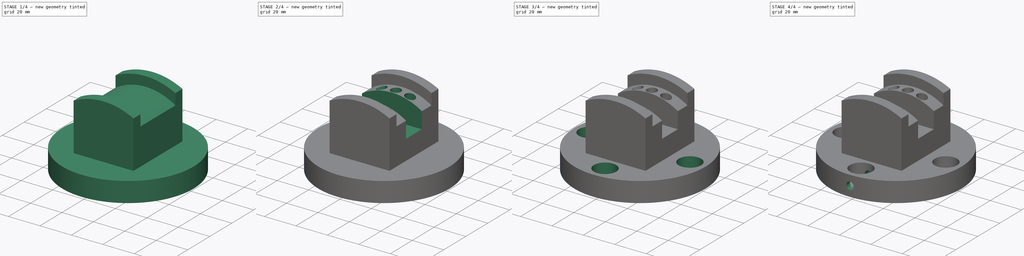
[diagram: build sequence overview — one tinted view per stage of 4, left to right]
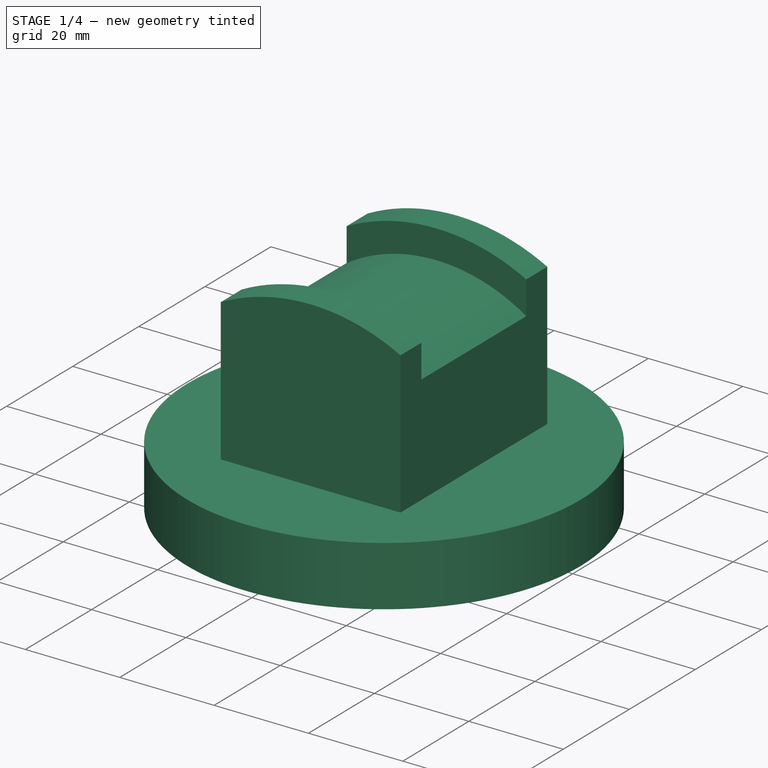
[diagram: stage 1 of 4 — iso view after this stage's code; geometry added in this stage tinted green]
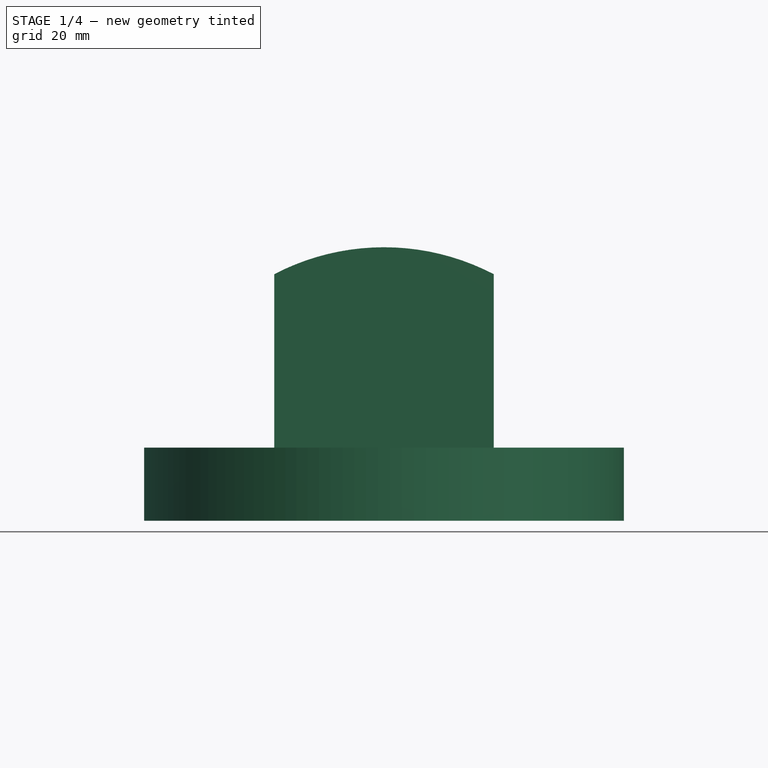
[diagram: stage 1 of 4 — front view after this stage's code; geometry added in this stage tinted green]
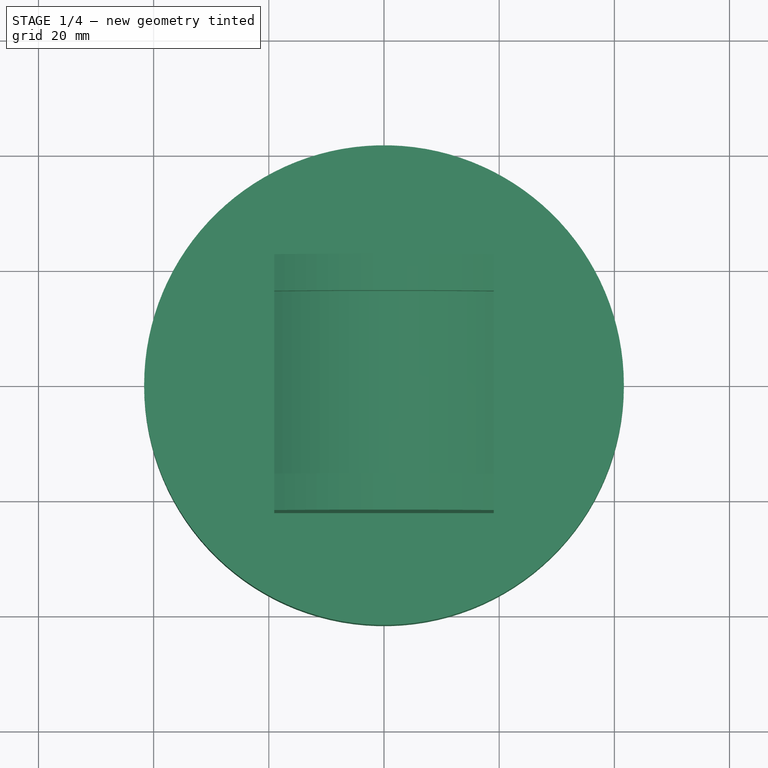
[diagram: stage 1 of 4 — top view after this stage's code; geometry added in this stage tinted green]
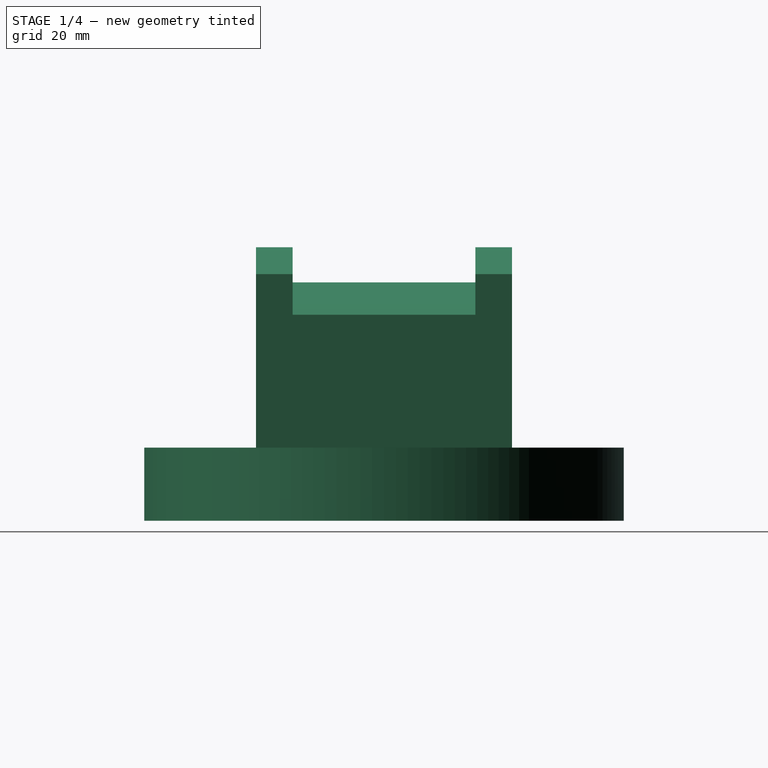
[diagram: stage 1 of 4 — right view after this stage's code; geometry added in this stage tinted green]
FCSTD DOCUMENT  (FreeCAD 0.17R10168 (Git))
Label: Advanced
License: All rights reserved
LicenseURL: http://en.wikipedia.org/wiki/All_rights_reserved
objects: Sketcher::SketchObject×9, PartDesign::Pocket×4, PartDesign::Groove×3, PartDesign::Pad×2, PartDesign::Plane×2, PartDesign::PolarPattern×2, PartDesign::Mirrored×1, PartDesign::MultiTransform×1, PartDesign::Body×1
note: 34 computed .brp shape members not serialized (recipe doc carries the construction recipe); baked Part::Feature solids carry a one-line shape summary decoded from their .brp

FEATURE [Sketcher::SketchObject] Sketch
  MapMode = 5
  Support = -> [XY_Plane]
  sketch-geometry (1):
    g0: Circle CenterX=0 CenterY=0 CenterZ=0 NormalX=0 NormalY=0 NormalZ=1 Radius=41.656
  constraints (2):
    c: Coincident(g0,g-1)
    c: Radius(g0) = 41.656
FEATURE [PartDesign::Pad] Pad
  Length = 12.7
  Length2 = 99.9998
  Midplane = true
  Profile = -> Sketch
  Reversed = true
  Type = 0
FEATURE [PartDesign::Plane] DatumPlane
  MapMode = 5
  Placement = pos=(0,0,6.35) rot=(0,0,1;0rad)
  Support = -> [XY_Plane]
  superPlacement = pos=(0,0,6.35) rot=(0,0,1;0rad)
FEATURE [Sketcher::SketchObject] Sketch001
  MapMode = 5
  Placement = pos=(0,0,6.35) rot=(0,0,1;0rad)
  Support = -> [DatumPlane]
  sketch-geometry (4):
    g0: LineSegment StartX=-19.05 StartY=22.225 StartZ=0 EndX=19.05 EndY=22.225 EndZ=0
    g1: LineSegment StartX=19.05 StartY=22.225 StartZ=0 EndX=19.05 EndY=-22.225 EndZ=0
    g2: LineSegment StartX=19.05 StartY=-22.225 StartZ=0 EndX=-19.05 EndY=-22.225 EndZ=0
    g3: LineSegment StartX=-19.05 StartY=-22.225 StartZ=0 EndX=-19.05 EndY=22.225 EndZ=0
  constraints (12):
    c: Coincident(g0,g1)
    c: Coincident(g1,g2)
    c: Coincident(g2,g3)
    c: Coincident(g3,g0)
    c: Horizontal(g0)
    c: Horizontal(g2)
    c: Vertical(g1)
    c: Vertical(g3)
    c: Symmetric(g1,g2,g-2)
    c: Symmetric(g2,g0,g-1)
    c: DistanceX(g0,g0) = 38.1
    c: DistanceY(g1,g1) = 44.45
FEATURE [PartDesign::Pad] Pad001
  BaseFeature = -> Pad
  Length = 50.8
  Length2 = 99.9998
  Profile = -> Sketch001
  Type = 0
FEATURE [Sketcher::SketchObject] Sketch002
  MapMode = 5
  Placement = pos=(0,0,0) rot=(0.57735,0.57735,0.57735;2.0944rad)
  Support = -> [YZ_Plane]
  sketch-geometry (8):
    g0: LineSegment StartX=-22.225 StartY=66.548 StartZ=0 EndX=22.225 EndY=66.548 EndZ=0
    g1: LineSegment StartX=22.225 StartY=66.548 StartZ=0 EndX=22.225 EndY=41.148 EndZ=0
    g2: LineSegment StartX=22.225 StartY=41.148 StartZ=0 EndX=15.875 EndY=41.148 EndZ=0
    g3: LineSegment StartX=-22.225 StartY=41.148 StartZ=0 EndX=-22.225 EndY=66.548 EndZ=0
    g4: LineSegment StartX=15.875 StartY=41.148 StartZ=0 EndX=15.875 EndY=35.052 EndZ=0
    g5: LineSegment StartX=15.875 StartY=35.052 StartZ=0 EndX=-15.875 EndY=35.052 EndZ=0
    g6: LineSegment StartX=-15.875 StartY=35.052 StartZ=0 EndX=-15.875 EndY=41.148 EndZ=0
    g7: LineSegment StartX=-15.875 StartY=41.148 StartZ=0 EndX=-22.225 EndY=41.148 EndZ=0
  constraints (25):
    c: Coincident(g0,g1)
    c: Coincident(g1,g2)
    c: Coincident(g7,g3)
    c: Coincident(g3,g0)
    c: Horizontal(g0)
    c: Horizontal(g2)
    c: Vertical(g1)
    c: Vertical(g3)
    c: Coincident(g4,g5)
    c: Coincident(g5,g6)
    c: Horizontal(g5)
    c: Vertical(g4)
    c: Vertical(g6)
    c: PointOnObject(g6,g2)
    c: Symmetric(g1,g7,g-2)
    c: Symmetric(g4,g5,g-2)
    c: PointOnObject(g2,g4)
    c: PointOnObject(g7,g6)
    c: Tangent(g2,g7)
    c: Coincident(g2,g4)
    c: DistanceX(g0,g0) = 44.45
    c: DistanceY(g3) = 41.148
    c: DistanceY(g5) = 35.052
    c: DistanceX(g7,g7) = 6.35
    c: DistanceY(g3,g3) = 25.4
FEATURE [PartDesign::Groove] Groove
  Angle = 120
  Axis = (0,1,0)
  Base = (0,0,0)
  BaseFeature = -> Pad001
  Midplane = true
  Profile = -> Sketch002
  ReferenceAxis = -> Sketch002 [H_Axis]
  Reversed = true
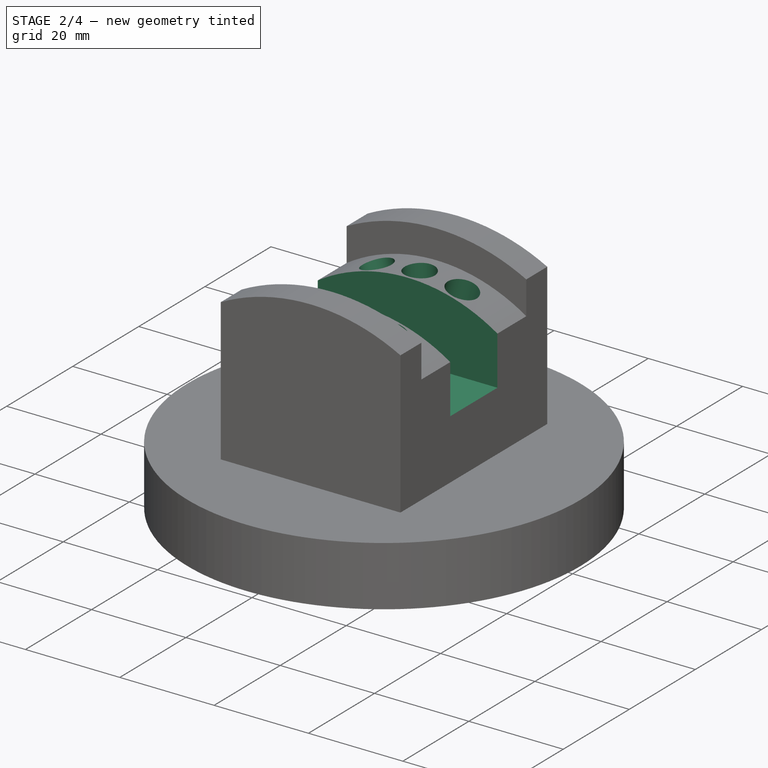
[diagram: stage 2 of 4 — iso view after this stage's code; geometry added in this stage tinted green]
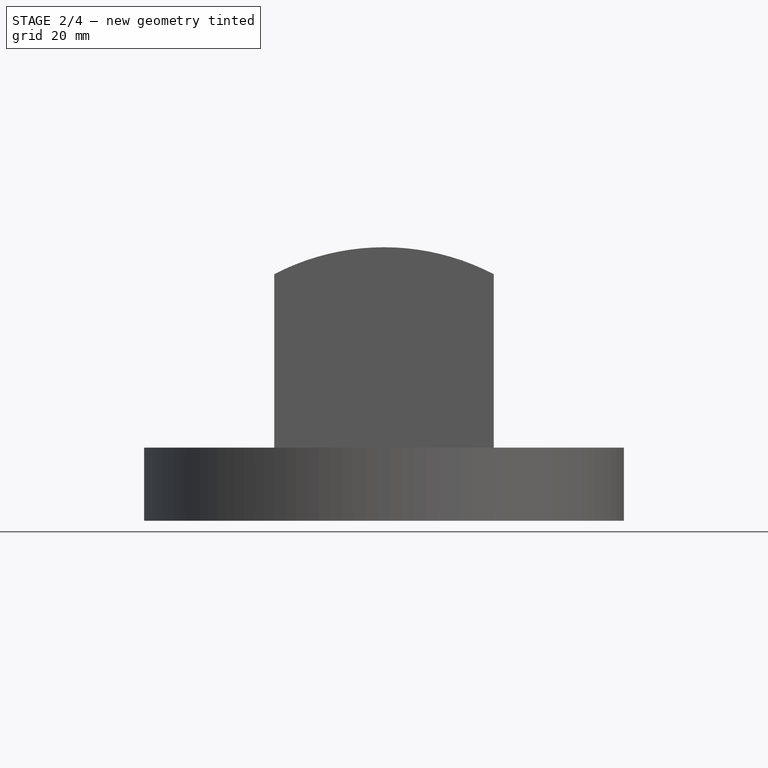
[diagram: stage 2 of 4 — front view after this stage's code; geometry added in this stage tinted green]
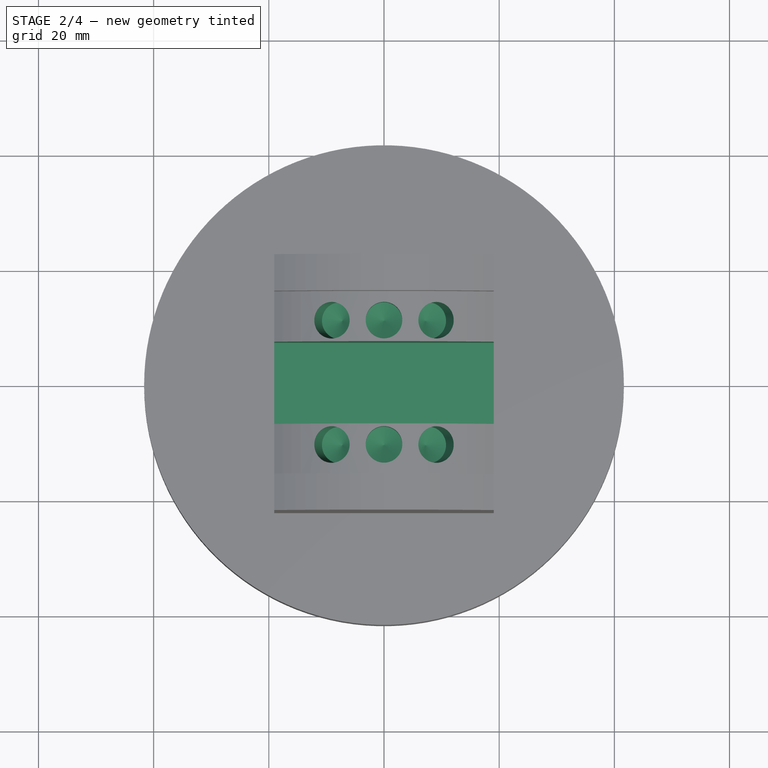
[diagram: stage 2 of 4 — top view after this stage's code; geometry added in this stage tinted green]
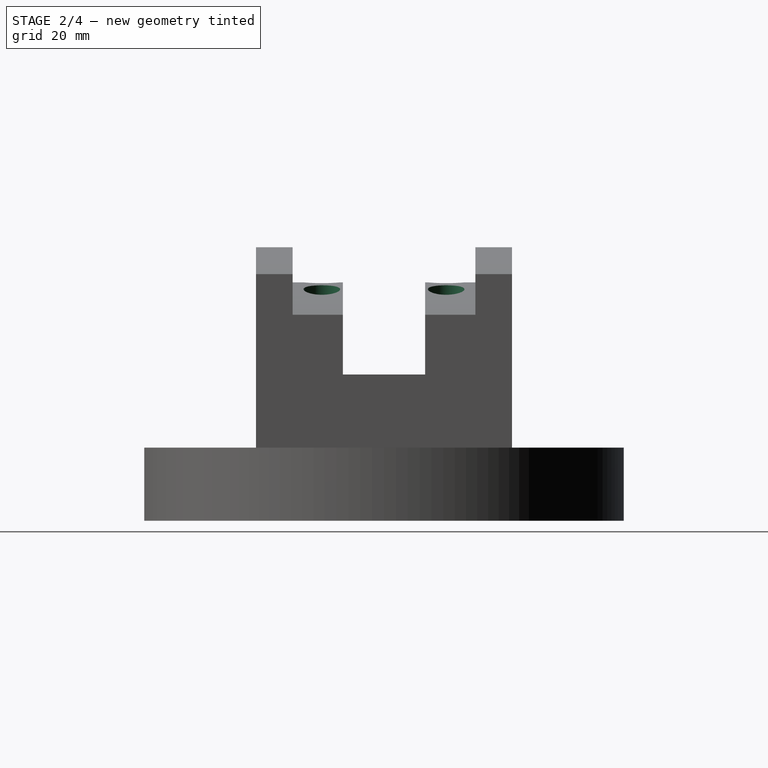
[diagram: stage 2 of 4 — right view after this stage's code; geometry added in this stage tinted green]
FEATURE [Sketcher::SketchObject] Sketch003
  MapMode = 5
  Placement = pos=(0,0,0) rot=(0.57735,0.57735,0.57735;2.0944rad)
  Support = -> [YZ_Plane]
  sketch-geometry (4):
    g0: LineSegment StartX=-7.1374 StartY=44.45 StartZ=0 EndX=7.1374 EndY=44.45 EndZ=0
    g1: LineSegment StartX=7.1374 StartY=44.45 StartZ=0 EndX=7.1374 EndY=19.05 EndZ=0
    g2: LineSegment StartX=7.1374 StartY=19.05 StartZ=0 EndX=-7.1374 EndY=19.05 EndZ=0
    g3: LineSegment StartX=-7.1374 StartY=19.05 StartZ=0 EndX=-7.1374 EndY=44.45 EndZ=0
  constraints (12):
    c: Coincident(g0,g1)
    c: Coincident(g1,g2)
    c: Coincident(g2,g3)
    c: Coincident(g3,g0)
    c: Horizontal(g0)
    c: Horizontal(g2)
    c: Vertical(g1)
    c: Vertical(g3)
    c: Symmetric(g0,g0,g-2)
    c: DistanceX(g0,g0) = 14.2748
    c: DistanceY(g2) = 19.05
    c: DistanceY(g3,g3) = 25.4
FEATURE [PartDesign::Pocket] Pocket
  BaseFeature = -> Groove
  Length = 5.00126
  Midplane = true
  Profile = -> Sketch003
  Type = 1
FEATURE [PartDesign::Plane] DatumPlane001
  MapMode = 5
  Placement = pos=(0,-10.795,0) rot=(1,0,0;1.5708rad)
  Support = -> [XZ_Plane]
  superPlacement = pos=(0,0,10.795) rot=(0,0,1;0rad)
FEATURE [Sketcher::SketchObject] Sketch004
  ExternalGeometry = -> [Pocket]
  MapMode = 5
  Placement = pos=(0,-10.795,0) rot=(1,0,0;1.5708rad)
  Support = -> [DatumPlane001]
  sketch-geometry (5):
    g0: LineSegment StartX=-9.07213 StartY=33.8576 StartZ=0 EndX=-6.00531 EndY=34.6794 EndZ=0
    g1: LineSegment StartX=-6.00531 StartY=34.6794 StartZ=0 EndX=-4.63903 EndY=29.5803 EndZ=0
    g2: LineSegment StartX=-7.2314 StartY=26.988 StartZ=0 EndX=-9.07213 EndY=33.8576 EndZ=0
    g3: LineSegment StartX=-7.2314 StartY=26.988 StartZ=0 EndX=-4.63903 EndY=29.5803 EndZ=0
    g4: LineSegment [constr] StartX=0 StartY=0 StartZ=0 EndX=-9.07213 EndY=33.8576 EndZ=0
  constraints (14):
    c: Coincident(g0,g1)
    c: Coincident(g2,g0)
    c: Coincident(g3,g2)
    c: Coincident(g3,g1)
    c: Angle(g3,g2) = 1.0472
    c: Parallel(g1,g2)
    c: Perpendicular(g1,g0)
    c: Distance(g2) = 7.112
    c: Distance(g0) = 3.175
    c: Coincident(g4,g-1)
    c: Coincident(g4,g0)
    c: PointOnObject(g2,g4)
    c: Angle(g4) = 1.8326
    c: PointOnObject(g0,g-3)
FEATURE [PartDesign::Groove] Groove001
  Angle = 360
  Axis = (-9.07213,0,33.8576)
  Base = (0,-10.795,0)
  BaseFeature = -> Pocket
  Profile = -> Sketch004
  ReferenceAxis = -> Sketch004 [Axis0]
FEATURE [PartDesign::PolarPattern] PolarPattern
  Angle = 30
  Axis = -> Sketch004 [N_Axis]
  Occurrences = 3
  Reversed = true
FEATURE [PartDesign::Mirrored] Mirrored
  MirrorPlane = -> XZ_Plane
FEATURE [PartDesign::MultiTransform] MultiTransform
  BaseFeature = -> Groove001
  Originals = -> [Groove001]
  Transformations = -> [PolarPattern,Mirrored]
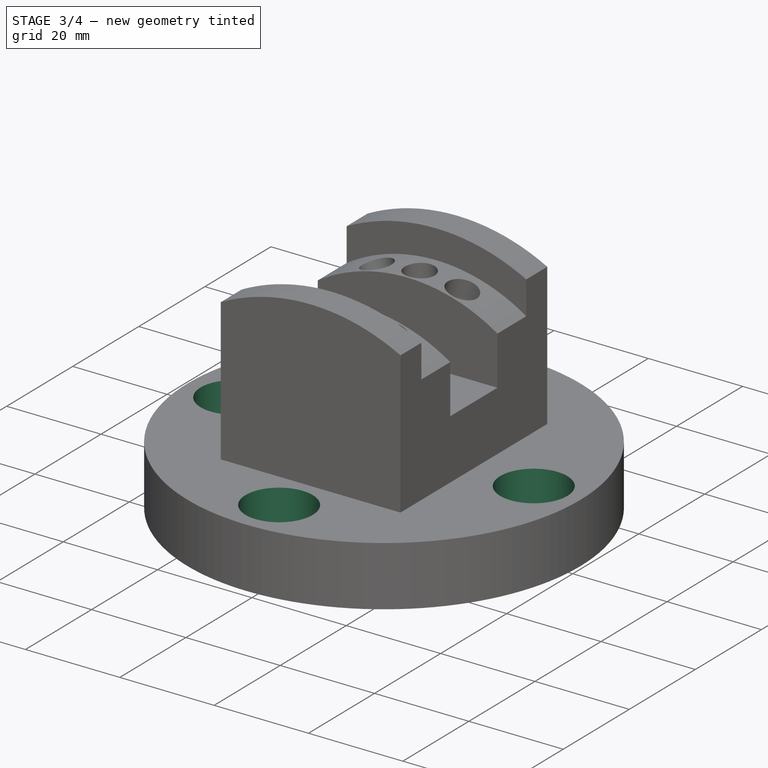
[diagram: stage 3 of 4 — iso view after this stage's code; geometry added in this stage tinted green]
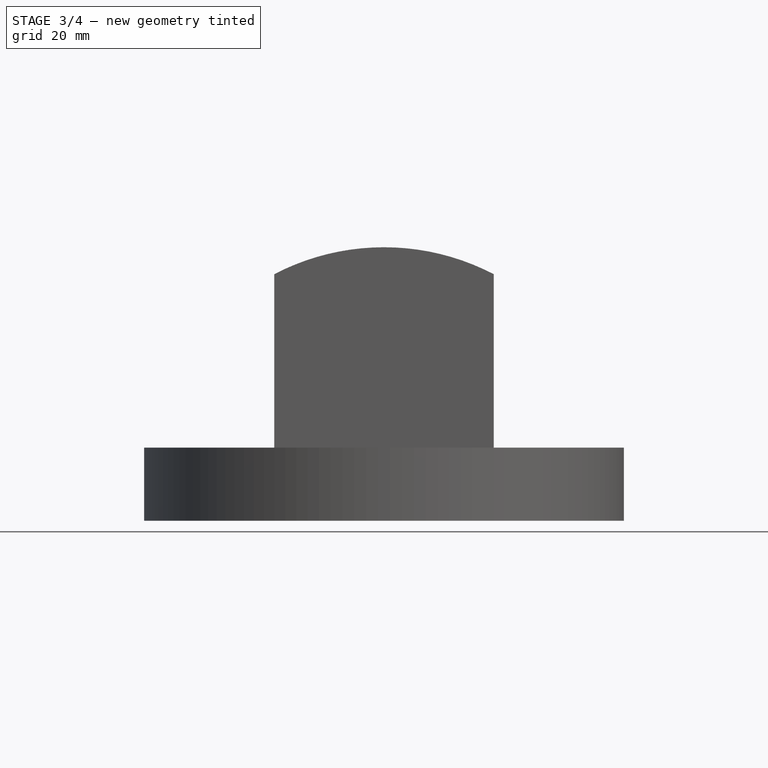
[diagram: stage 3 of 4 — front view after this stage's code; geometry added in this stage tinted green]
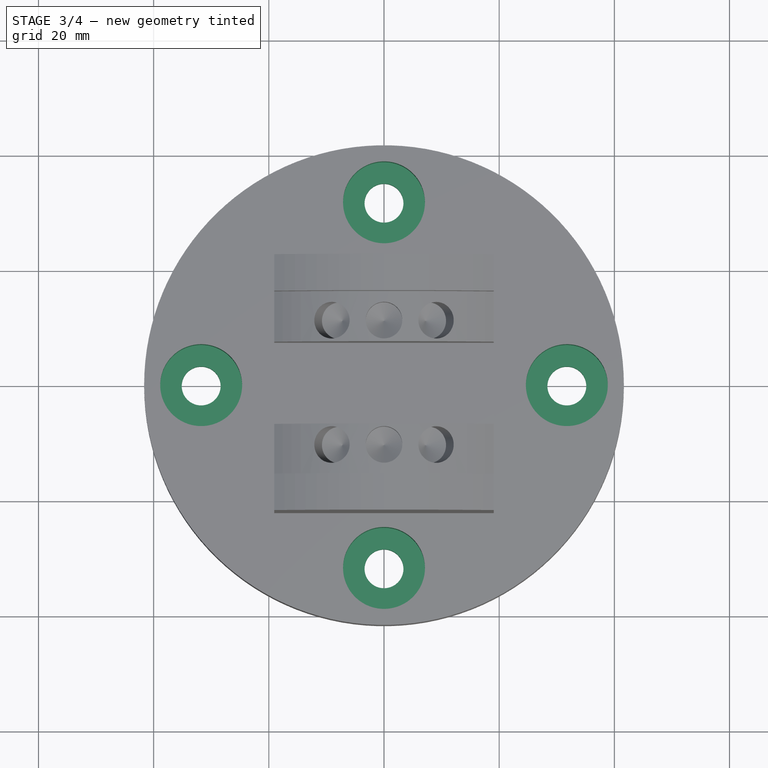
[diagram: stage 3 of 4 — top view after this stage's code; geometry added in this stage tinted green]
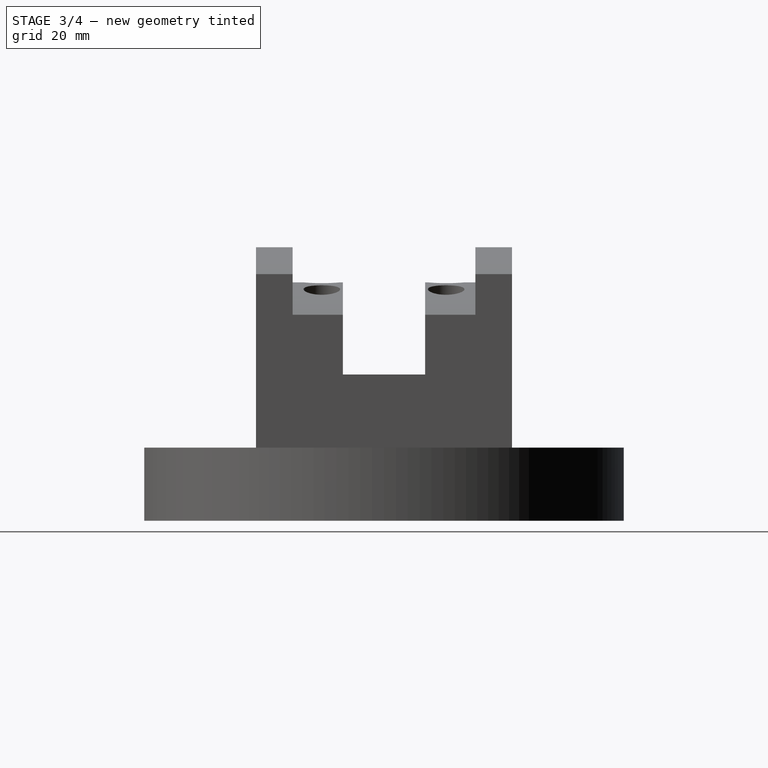
[diagram: stage 3 of 4 — right view after this stage's code; geometry added in this stage tinted green]
FEATURE [Sketcher::SketchObject] Sketch005
  MapMode = 5
  Placement = pos=(0,0,0) rot=(0.57735,0.57735,0.57735;2.0944rad)
  Support = -> [YZ_Plane]
  sketch-geometry (7):
    g0: LineSegment StartX=31.75 StartY=6.35 StartZ=0 EndX=31.75 EndY=-6.35 EndZ=0
    g1: LineSegment StartX=31.75 StartY=-6.35 StartZ=0 EndX=35.1282 EndY=-6.35 EndZ=0
    g2: LineSegment StartX=35.1282 StartY=-6.35 StartZ=0 EndX=35.1282 EndY=-2.032 EndZ=0
    g3: LineSegment StartX=35.1282 StartY=-2.032 StartZ=0 EndX=38.862 EndY=-2.032 EndZ=0
    g4: LineSegment StartX=38.862 StartY=-2.032 StartZ=0 EndX=38.862 EndY=6.35 EndZ=0
    g5: LineSegment StartX=38.862 StartY=6.35 StartZ=0 EndX=31.75 EndY=6.35 EndZ=0
    g6: LineSegment [constr] StartX=31.75 StartY=25.4 StartZ=0 EndX=31.75 EndY=-25.4 EndZ=0
  constraints (22):
    c: Vertical(g0)
    c: Coincident(g0,g1)
    c: Coincident(g1,g2)
    c: Vertical(g2)
    c: Coincident(g2,g3)
    c: Horizontal(g3)
    c: Coincident(g3,g4)
    c: Vertical(g4)
    c: Coincident(g4,g5)
    c: Coincident(g5,g0)
    c: Horizontal(g5)
    c: DistanceY(g4,g4) = 8.382
    c: DistanceY(g4) = 6.35
    c: Horizontal(g1)
    c: Symmetric(g0,g0,g-1)
    c: DistanceX(g5,g5) = 7.112
    c: DistanceX(g1,g1) = 3.3782
    c: Vertical(g6)
    c: DistanceX(g6) = 31.75
    c: PointOnObject(g0,g6)
    c: Symmetric(g6,g6,g-1)
    c: DistanceY(g6,g6) = 50.8
FEATURE [PartDesign::Groove] Groove002
  Angle = 360
  Axis = (0,0,-50.8)
  Base = (0,31.75,25.4)
  BaseFeature = -> MultiTransform
  Profile = -> Sketch005
  ReferenceAxis = -> Sketch005 [Axis0]
  Reversed = true
FEATURE [PartDesign::PolarPattern] PolarPattern001
  Angle = 360
  Axis = -> Z_Axis
  BaseFeature = -> Groove002
  Occurrences = 4
  Originals = -> [Groove002]
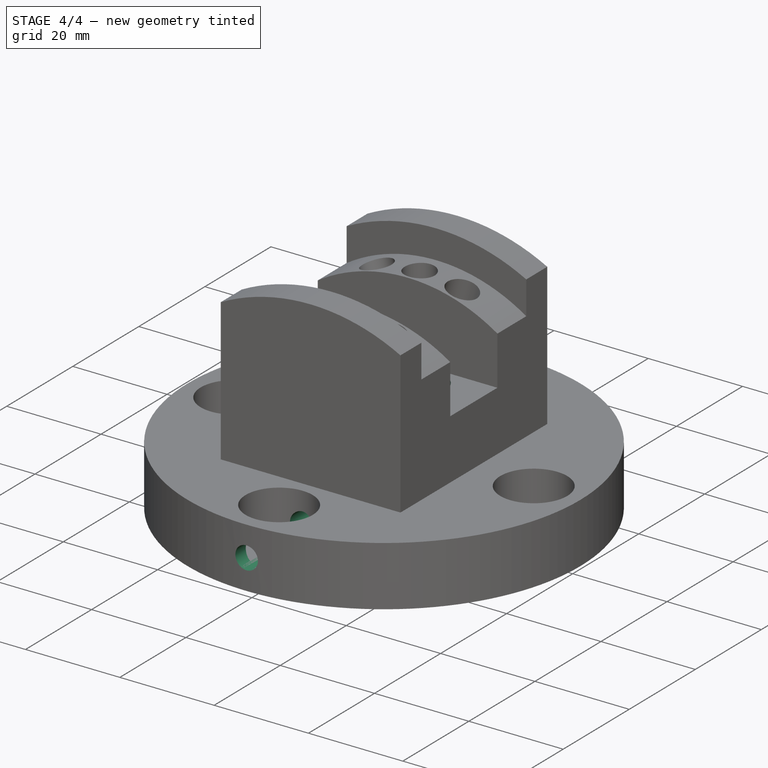
[diagram: stage 4 of 4 — iso view after this stage's code; geometry added in this stage tinted green]
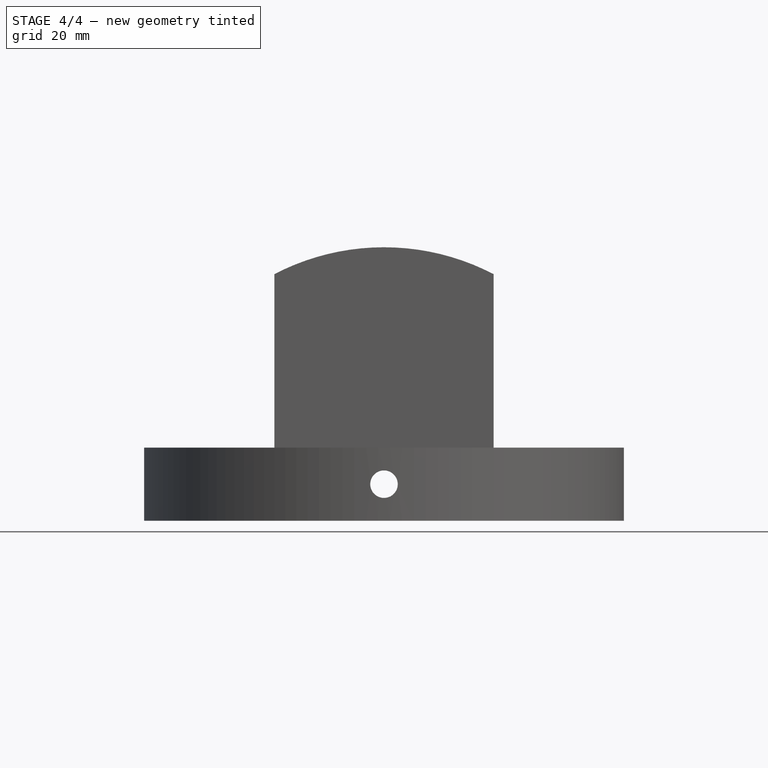
[diagram: stage 4 of 4 — front view after this stage's code; geometry added in this stage tinted green]
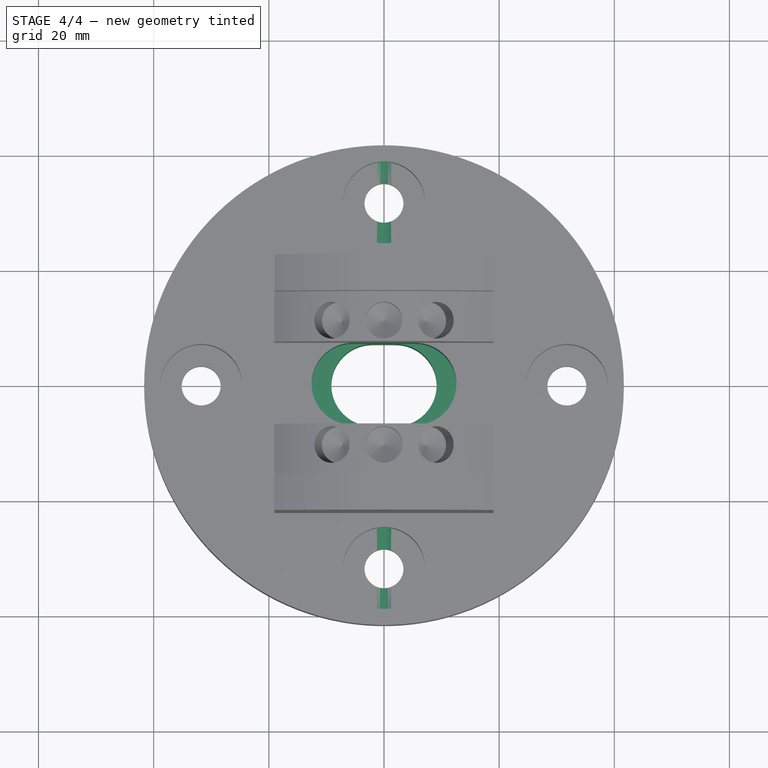
[diagram: stage 4 of 4 — top view after this stage's code; geometry added in this stage tinted green]
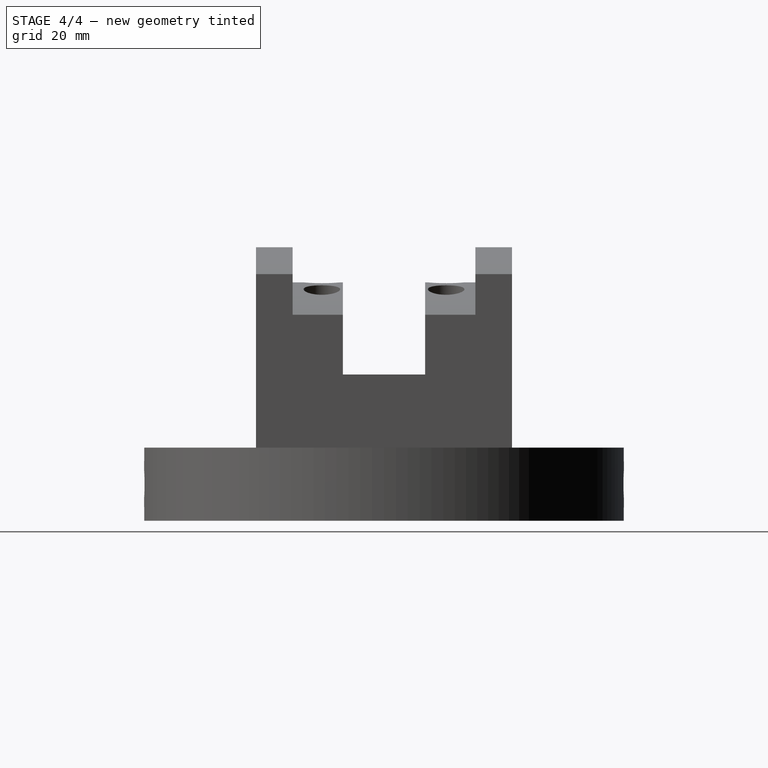
[diagram: stage 4 of 4 — right view after this stage's code; geometry added in this stage tinted green]
FEATURE [Sketcher::SketchObject] Sketch006
  MapMode = 5
  Placement = pos=(0,0,0) rot=(1,0,0;1.5708rad)
  Support = -> [XZ_Plane]
  sketch-geometry (1):
    g0: Circle CenterX=0 CenterY=0 CenterZ=0 NormalX=0 NormalY=0 NormalZ=1 Radius=2.38633
  constraints (2):
    c: Coincident(g0,g-1)
    c: Radius(g0) = 2.38633
FEATURE [PartDesign::Pocket] Pocket001
  BaseFeature = -> PolarPattern001
  Length = 5.00126
  Midplane = true
  Profile = -> Sketch006
  Type = 1
FEATURE [Sketcher::SketchObject] Sketch007
  MapMode = 5
  Placement = pos=(0,0,6.35) rot=(0,0,1;0rad)
  Support = -> [DatumPlane]
  expr: Constraints[9] = 0.98999999999999999in - Constraints.radius * 2
  sketch-geometry (4):
    g0: ArcOfCircle CenterX=-5.4356 CenterY=0 CenterZ=0 NormalX=0 NormalY=0 NormalZ=1 Radius=7.1374 StartAngle=1.5708 EndAngle=4.71239
    g1: ArcOfCircle CenterX=5.4356 CenterY=0 CenterZ=0 NormalX=0 NormalY=0 NormalZ=1 Radius=7.1374 StartAngle=4.71239 EndAngle=7.85398
    g2: LineSegment StartX=-5.4356 StartY=-7.1374 StartZ=0 EndX=5.4356 EndY=-7.1374 EndZ=0
    g3: LineSegment StartX=-5.4356 StartY=7.1374 StartZ=0 EndX=5.4356 EndY=7.1374 EndZ=0
  constraints (10):
    c: Tangent(g0,g3) = 1.5708
    c: Tangent(g0,g2) = -1.5708
    c: Tangent(g2,g1) = -1.5708
    c: Tangent(g3,g1) = 1.5708
    c: Horizontal(g2)
    c: Equal(g0,g1)
    c: PointOnObject(g0,g-1)
    c: Symmetric(g1,g0,g-2)
    c: Radius(g1) = 7.1374  'radius'
    c: DistanceX(g0,g1) = 10.8712
FEATURE [PartDesign::Pocket] Pocket002
  BaseFeature = -> Pocket001
  Length = 5.00126
  Profile = -> Sketch007
  Reversed = true
  Type = 1
FEATURE [Sketcher::SketchObject] Sketch008
  MapMode = 5
  Placement = pos=(0,0,6.35) rot=(0,0,1;0rad)
  Support = -> [DatumPlane]
  sketch-geometry (4):
    g0: ArcOfCircle CenterX=-2.0066 CenterY=0 CenterZ=0 NormalX=0 NormalY=0 NormalZ=1 Radius=7.1374 StartAngle=1.5708 EndAngle=4.71239
    g1: ArcOfCircle CenterX=2.0066 CenterY=0 CenterZ=0 NormalX=0 NormalY=0 NormalZ=1 Radius=7.1374 StartAngle=4.71239 EndAngle=7.85398
    g2: LineSegment StartX=-2.0066 StartY=-7.1374 StartZ=0 EndX=2.0066 EndY=-7.1374 EndZ=0
    g3: LineSegment StartX=-2.0066 StartY=7.1374 StartZ=0 EndX=2.0066 EndY=7.1374 EndZ=0
  constraints (9):
    c: Tangent(g0,g3) = 1.5708
    c: Tangent(g0,g2) = -1.5708
    c: Tangent(g2,g1) = -1.5708
    c: Tangent(g3,g1) = 1.5708
    c: Horizontal(g2)
    c: Equal(g0,g1)
    c: PointOnObject(g1,g-1)
    c: Symmetric(g0,g1,g-2)
    c: Radius(g1) = 7.1374  'radius'
FEATURE [PartDesign::Pocket] Pocket003
  BaseFeature = -> Pocket002
  Length = 5.00126
  Profile = -> Sketch008
  Type = 1
FEATURE [PartDesign::Body] Body
  Group = -> [Sketch,Pad,DatumPlane,Sketch001,Pad001,Sketch002,Groove,Sketch003,Pocket,DatumPlane001,Sketch004,Groove001,MultiTransform,Sketch005,Groove002,PolarPattern001,Sketch006,Pocket001,Sketch007,Pocket002,Sketch008,Pocket003]
  Origin = -> BodyOrigin
  Tip = -> Pocket003
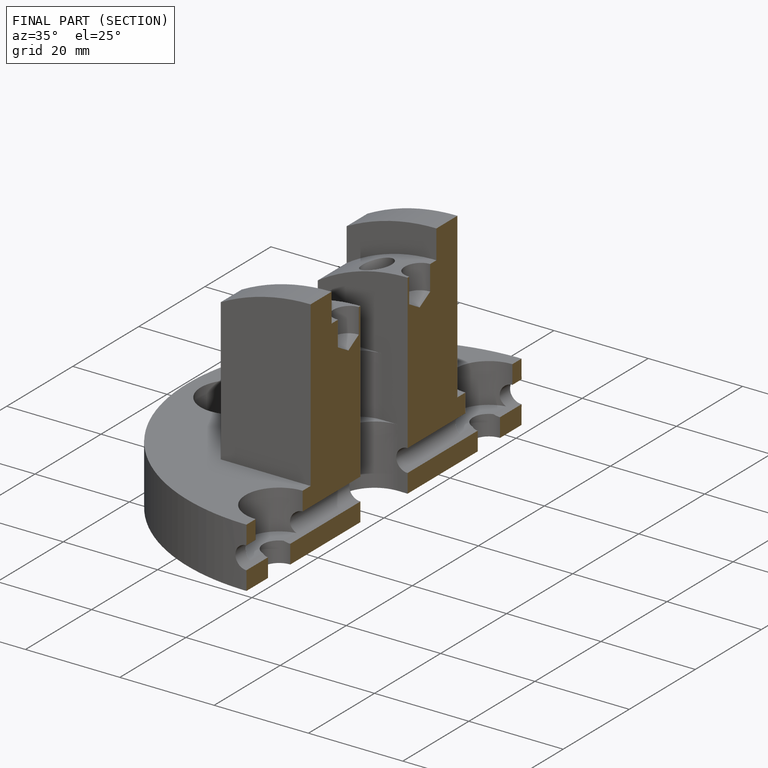
[diagram: finished part — half-section view (interior)]
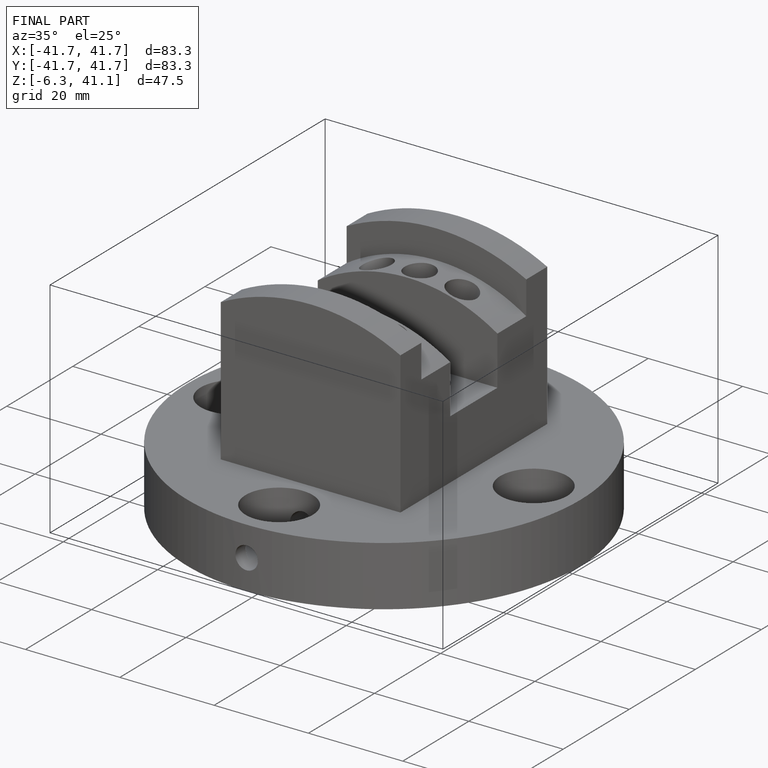
[diagram: finished part — iso view with bounding-box wireframe]
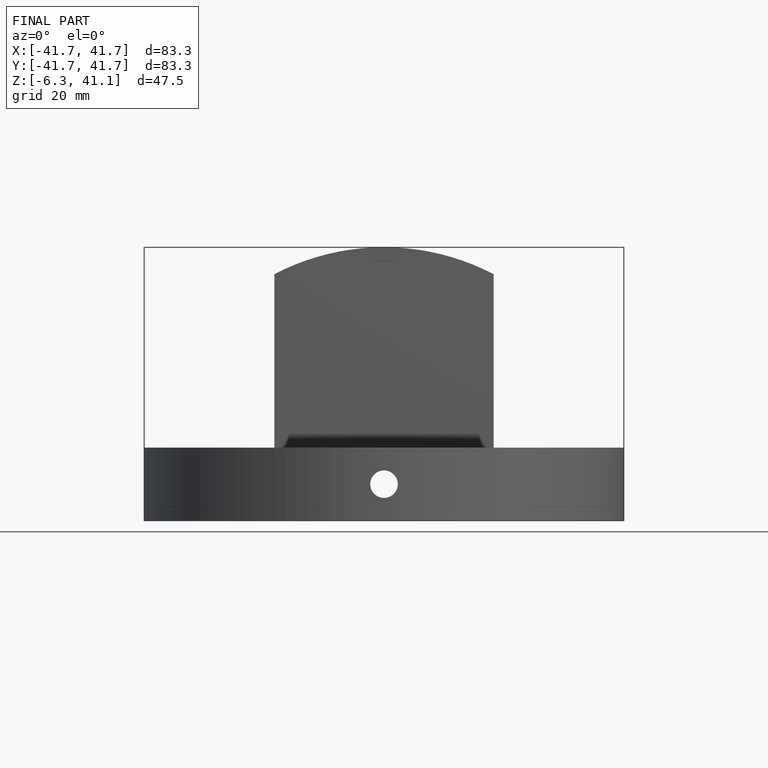
[diagram: finished part — front view with bounding-box wireframe]
